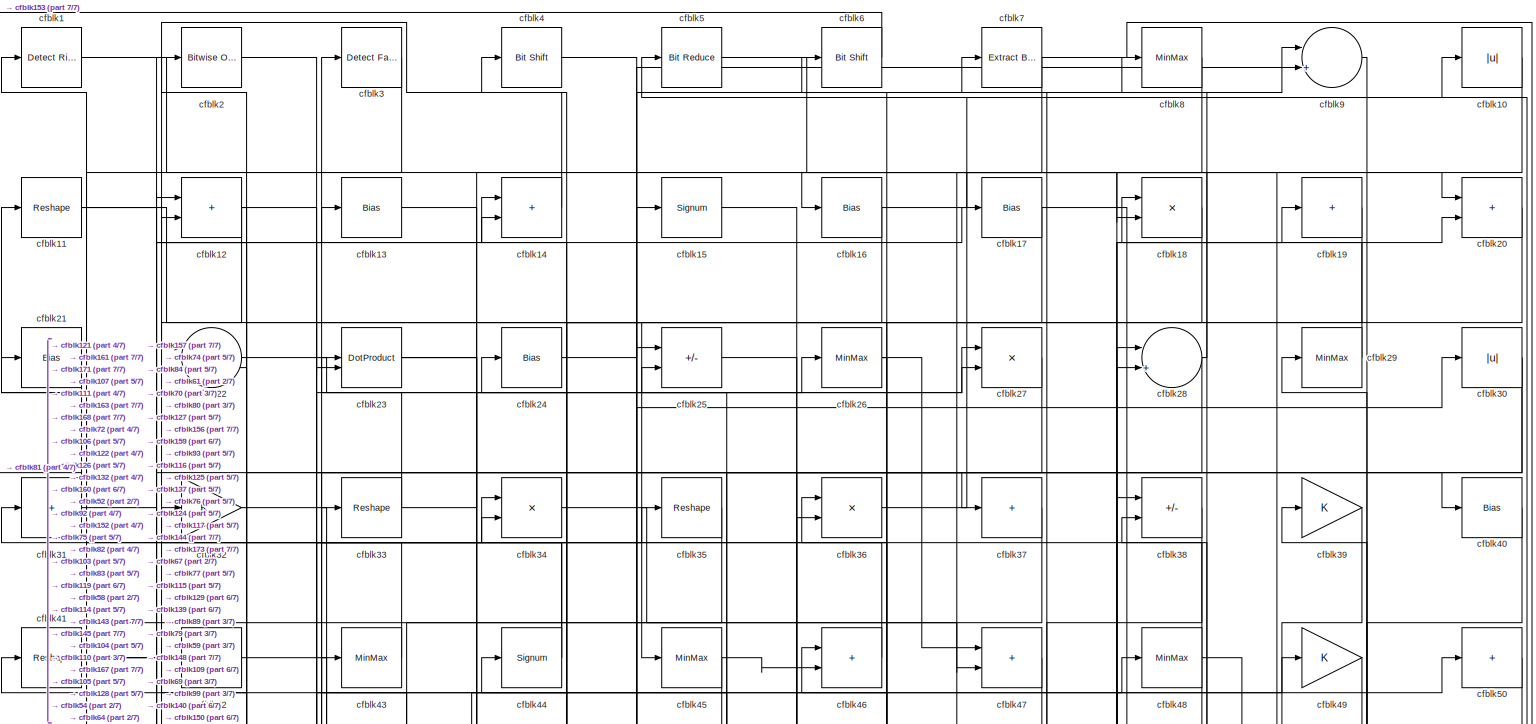
[diagram: root canvas - part 1/7, full width, top band]
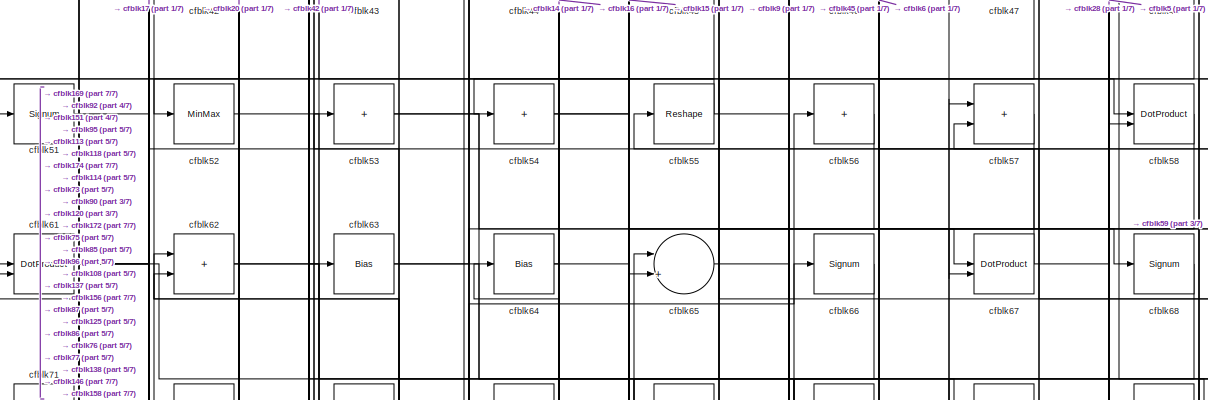
[diagram: root canvas - part 2/7, full width, middle band]
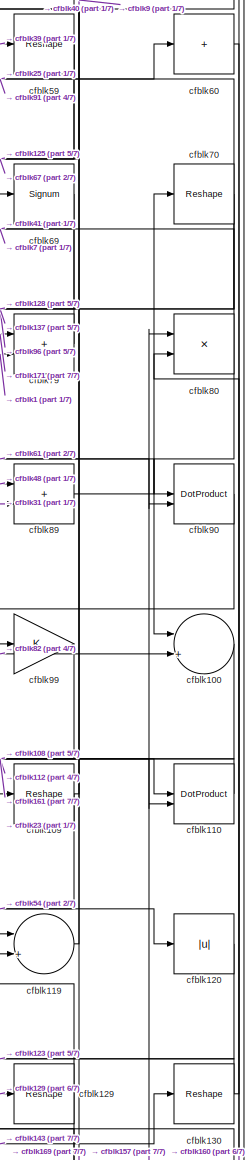
[diagram: root canvas - part 3/7, middle right region]
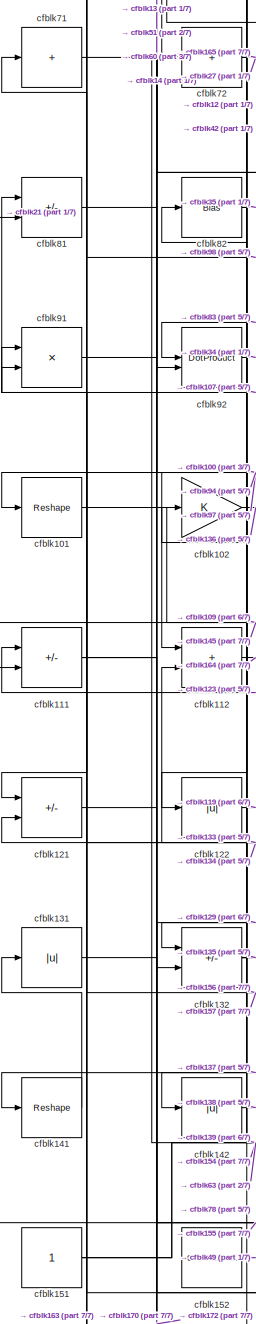
[diagram: root canvas - part 4/7, middle left region]
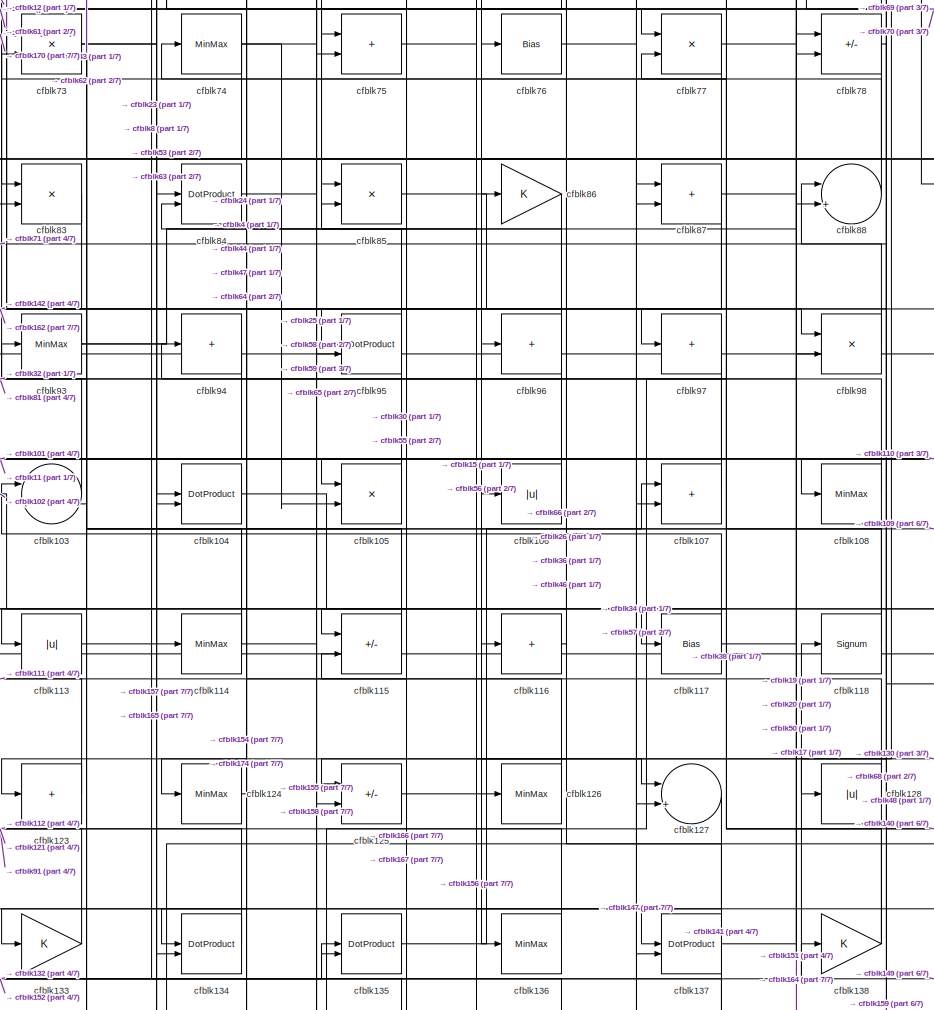
[diagram: root canvas - part 5/7, central region]
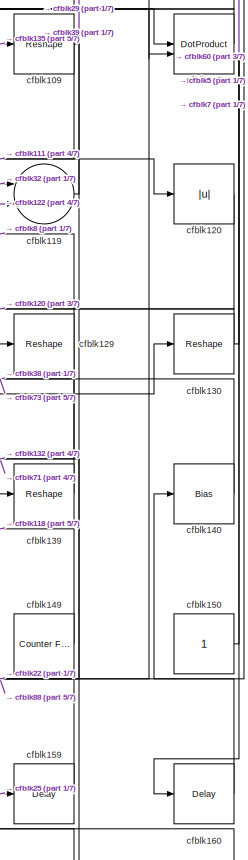
[diagram: root canvas - part 6/7, bottom right region]
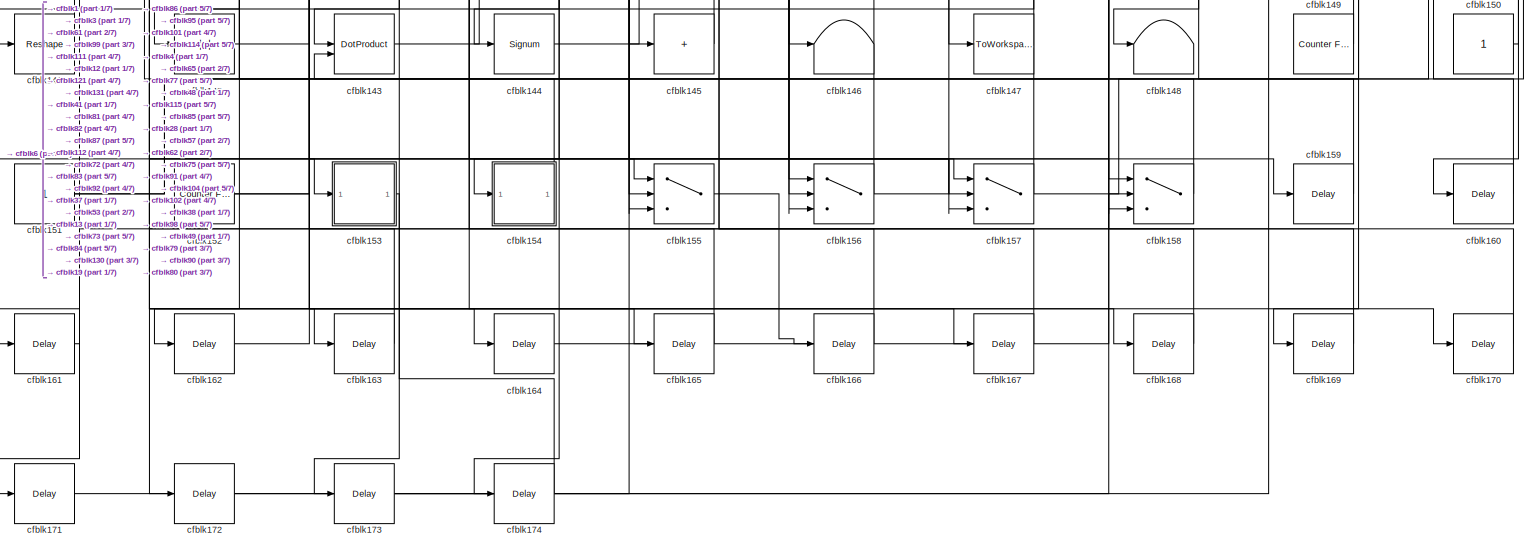
[diagram: root canvas - part 7/7, full width, bottom band]
MODEL slx_5e91fe5d6eaa
KIND model
CONFIG AbsTol = auto
CONFIG EnableMultiTasking = off
CONFIG FixedStep = auto
CONFIG MaxStep = auto
CONFIG MinStep = auto
CONFIG RelTol = 1e-3
CONFIG SampleTimeConstraint = Unconstrained
CONFIG SolverName = VariableStepAuto
CONFIG StartTime = 0.0
CONFIG StopTime = 10.0
BLOCK [Reference] cfblk1  REF=hdlsllib/Logic and Bit
Operations/Detect Rise
Nonnegative
  SourceBlock = hdlsllib/Logic and Bit\nOperations/Detect Rise\nNonnegative
  SourceType = Detect Rise Nonnegative
BLOCK [Abs] cfblk10
  SaturateOnIntegerOverflow = off
BLOCK [Sum] cfblk100
  Inputs = |++
BLOCK [Reshape] cfblk101
BLOCK [Gain] cfblk102
BLOCK [Sum] cfblk103
  Inputs = |++
BLOCK [DotProduct] cfblk104
  OutDataTypeStr = Inherit: Inherit via internal rule
BLOCK [Product] cfblk105
  Inputs = */
  RndMeth = Zero
  SaturateOnIntegerOverflow = on
BLOCK [Abs] cfblk106
  SaturateOnIntegerOverflow = off
BLOCK [Sum] cfblk107
  IconShape = rectangular
BLOCK [MinMax] cfblk108
BLOCK [Reshape] cfblk109
BLOCK [Reshape] cfblk11
BLOCK [DotProduct] cfblk110
  OutDataTypeStr = Inherit: Inherit via internal rule
BLOCK [Sum] cfblk111
  IconShape = rectangular
  Inputs = +-
BLOCK [Sum] cfblk112
  IconShape = rectangular
BLOCK [Abs] cfblk113
  SaturateOnIntegerOverflow = off
BLOCK [MinMax] cfblk114
BLOCK [Sum] cfblk115
  IconShape = rectangular
  Inputs = +-
BLOCK [Sum] cfblk116
  IconShape = rectangular
  Inputs = +
BLOCK [Bias] cfblk117
  Bias = 0.0
  SaturateOnIntegerOverflow = off
BLOCK [Signum] cfblk118
BLOCK [Sum] cfblk119
  Inputs = |++
BLOCK [Sum] cfblk12
  IconShape = rectangular
BLOCK [Abs] cfblk120
  SaturateOnIntegerOverflow = off
BLOCK [Sum] cfblk121
  IconShape = rectangular
  Inputs = +-
BLOCK [Abs] cfblk122
  SaturateOnIntegerOverflow = off
BLOCK [Sum] cfblk123
  IconShape = rectangular
  Inputs = +
BLOCK [MinMax] cfblk124
BLOCK [Sum] cfblk125
  IconShape = rectangular
  Inputs = +-
BLOCK [MinMax] cfblk126
BLOCK [Sum] cfblk127
  Inputs = |++
BLOCK [Abs] cfblk128
  SaturateOnIntegerOverflow = off
BLOCK [Reshape] cfblk129
BLOCK [Bias] cfblk13
  Bias = 0.0
  SaturateOnIntegerOverflow = off
BLOCK [Reshape] cfblk130
BLOCK [Abs] cfblk131
  SaturateOnIntegerOverflow = off
BLOCK [Sum] cfblk132
  IconShape = rectangular
  Inputs = +-
BLOCK [Gain] cfblk133
BLOCK [DotProduct] cfblk134
  OutDataTypeStr = Inherit: Inherit via internal rule
BLOCK [DotProduct] cfblk135
  OutDataTypeStr = Inherit: Inherit via internal rule
BLOCK [MinMax] cfblk136
BLOCK [DotProduct] cfblk137
  OutDataTypeStr = Inherit: Inherit via internal rule
BLOCK [Gain] cfblk138
BLOCK [Reshape] cfblk139
BLOCK [Sum] cfblk14
  IconShape = rectangular
BLOCK [Bias] cfblk140
  Bias = 0.0
  SaturateOnIntegerOverflow = off
BLOCK [Reshape] cfblk141
BLOCK [Abs] cfblk142
  SaturateOnIntegerOverflow = off
BLOCK [DotProduct] cfblk143
  OutDataTypeStr = Inherit: Inherit via internal rule
BLOCK [Signum] cfblk144
BLOCK [Sum] cfblk145
  IconShape = rectangular
  Inputs = +
BLOCK [Terminator] cfblk146
BLOCK [ToWorkspace] cfblk147
  MaxDataPoints = inf
  SampleTime = -1
  SaveFormat = Timeseries
  VariableName = simout
BLOCK [Terminator] cfblk148
BLOCK [Reference] cfblk149  REF=hdlsllib/Sources/Counter
Free-Running
  SourceBlock = hdlsllib/Sources/Counter\nFree-Running
  SourceType = Counter Free-Running
BLOCK [Signum] cfblk15
BLOCK [Constant] cfblk150
  SampleTime = -1
BLOCK [Constant] cfblk151
  SampleTime = -1
BLOCK [Reference] cfblk152  REF=hdlsllib/Sources/Counter
Free-Running
  SourceBlock = hdlsllib/Sources/Counter\nFree-Running
  SourceType = Counter Free-Running
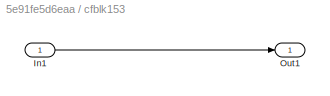
BLOCK [SubSystem] cfblk153
  LibrarySourceBlock = hdlsllib/Ports &\nSubsystems/Subsystem
BLOCK [Inport] cfblk153/In1
BLOCK [Outport] cfblk153/Out1
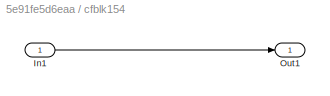
BLOCK [SubSystem] cfblk154
  LibrarySourceBlock = hdlsllib/Ports &\nSubsystems/Subsystem
BLOCK [Inport] cfblk154/In1
BLOCK [Outport] cfblk154/Out1
BLOCK [Switch] cfblk155
  InputSameDT = off
  SaturateOnIntegerOverflow = off
BLOCK [Switch] cfblk156
  InputSameDT = off
  SaturateOnIntegerOverflow = off
BLOCK [Switch] cfblk157
  InputSameDT = off
  SaturateOnIntegerOverflow = off
BLOCK [Switch] cfblk158
  InputSameDT = off
  SaturateOnIntegerOverflow = off
BLOCK [Delay] cfblk159
  InputPortMap = u0
  SampleTime = 1
BLOCK [Bias] cfblk16
  Bias = 0.0
  SaturateOnIntegerOverflow = off
BLOCK [Delay] cfblk160
  InputPortMap = u0
  SampleTime = 1
BLOCK [Delay] cfblk161
  InputPortMap = u0
  SampleTime = 1
BLOCK [Delay] cfblk162
  InputPortMap = u0
  SampleTime = 1
BLOCK [Delay] cfblk163
  InputPortMap = u0
  SampleTime = 1
BLOCK [Delay] cfblk164
  InputPortMap = u0
  SampleTime = 1
BLOCK [Delay] cfblk165
  InputPortMap = u0
  SampleTime = 1
BLOCK [Delay] cfblk166
  InputPortMap = u0
  SampleTime = 1
BLOCK [Delay] cfblk167
  InputPortMap = u0
  SampleTime = 1
BLOCK [Delay] cfblk168
  InputPortMap = u0
  SampleTime = 1
BLOCK [Delay] cfblk169
  InputPortMap = u0
  SampleTime = 1
BLOCK [Bias] cfblk17
  Bias = 0.0
  SaturateOnIntegerOverflow = off
BLOCK [Delay] cfblk170
  InputPortMap = u0
  SampleTime = 1
BLOCK [Delay] cfblk171
  InputPortMap = u0
  SampleTime = 1
BLOCK [Delay] cfblk172
  InputPortMap = u0
  SampleTime = 1
BLOCK [Delay] cfblk173
  InputPortMap = u0
  SampleTime = 1
BLOCK [Delay] cfblk174
  InputPortMap = u0
  SampleTime = 1
BLOCK [Product] cfblk18
  Inputs = */
  RndMeth = Zero
  SaturateOnIntegerOverflow = on
BLOCK [Sum] cfblk19
  IconShape = rectangular
  Inputs = +
BLOCK [Reference] cfblk2  REF=simulink/Logic and Bit
Operations/Bitwise
Operator
  LibrarySourceBlock = hdlsllib/Logic and Bit\nOperations/Bitwise\nOperator
  SourceBlock = simulink/Logic and Bit\nOperations/Bitwise\nOperator
  SourceType = Bitwise Operator
BLOCK [Sum] cfblk20
  IconShape = rectangular
BLOCK [Bias] cfblk21
  Bias = 0.0
  SaturateOnIntegerOverflow = off
BLOCK [Sum] cfblk22
  Inputs = |++
BLOCK [DotProduct] cfblk23
  OutDataTypeStr = Inherit: Inherit via internal rule
BLOCK [Bias] cfblk24
  Bias = 0.0
  SaturateOnIntegerOverflow = off
BLOCK [Sum] cfblk25
  IconShape = rectangular
  Inputs = +-
BLOCK [MinMax] cfblk26
BLOCK [Product] cfblk27
  Inputs = */
  RndMeth = Zero
  SaturateOnIntegerOverflow = on
BLOCK [Sum] cfblk28
  Inputs = |++
BLOCK [MinMax] cfblk29
BLOCK [Reference] cfblk3  REF=hdlsllib/Logic and Bit
Operations/Detect Fall
Negative
  SourceBlock = hdlsllib/Logic and Bit\nOperations/Detect Fall\nNegative
  SourceType = Detect Fall Negative
BLOCK [Abs] cfblk30
  SaturateOnIntegerOverflow = off
BLOCK [Sum] cfblk31
  IconShape = rectangular
  Inputs = +
BLOCK [Gain] cfblk32
BLOCK [Reshape] cfblk33
BLOCK [Product] cfblk34
  Inputs = */
  RndMeth = Zero
  SaturateOnIntegerOverflow = on
BLOCK [Reshape] cfblk35
BLOCK [Product] cfblk36
  Inputs = */
  RndMeth = Zero
  SaturateOnIntegerOverflow = on
BLOCK [Sum] cfblk37
  IconShape = rectangular
  Inputs = +
BLOCK [Sum] cfblk38
  IconShape = rectangular
  Inputs = +-
BLOCK [Gain] cfblk39
BLOCK [Reference] cfblk4  REF=hdlsllib/Logic and Bit
Operations/Bit Shift
  SourceBlock = hdlsllib/Logic and Bit\nOperations/Bit Shift
  SourceType = Bit Shift
BLOCK [Bias] cfblk40
  Bias = 0.0
  SaturateOnIntegerOverflow = off
BLOCK [Reshape] cfblk41
BLOCK [Sum] cfblk42
  IconShape = rectangular
  Inputs = +
BLOCK [MinMax] cfblk43
BLOCK [Signum] cfblk44
BLOCK [MinMax] cfblk45
BLOCK [Sum] cfblk46
  IconShape = rectangular
BLOCK [Sum] cfblk47
  IconShape = rectangular
BLOCK [MinMax] cfblk48
BLOCK [Gain] cfblk49
BLOCK [Reference] cfblk5  REF=hdlsllib/Logic and Bit
Operations/Bit Reduce
  SourceBlock = hdlsllib/Logic and Bit\nOperations/Bit Reduce
  SourceType = Bit Reduce
BLOCK [Sum] cfblk50
  IconShape = rectangular
  Inputs = +
BLOCK [Signum] cfblk51
BLOCK [MinMax] cfblk52
BLOCK [Sum] cfblk53
  IconShape = rectangular
  Inputs = +
BLOCK [Sum] cfblk54
  IconShape = rectangular
  Inputs = +
BLOCK [Reshape] cfblk55
BLOCK [Sum] cfblk56
  IconShape = rectangular
  Inputs = +
BLOCK [Sum] cfblk57
  IconShape = rectangular
BLOCK [DotProduct] cfblk58
  OutDataTypeStr = Inherit: Inherit via internal rule
BLOCK [Reshape] cfblk59
BLOCK [Reference] cfblk6  REF=hdlsllib/Logic and Bit
Operations/Bit Shift
  SourceBlock = hdlsllib/Logic and Bit\nOperations/Bit Shift
  SourceType = Bit Shift
BLOCK [Sum] cfblk60
  IconShape = rectangular
  Inputs = +
BLOCK [DotProduct] cfblk61
  OutDataTypeStr = Inherit: Inherit via internal rule
BLOCK [Sum] cfblk62
  IconShape = rectangular
BLOCK [Bias] cfblk63
  Bias = 0.0
  SaturateOnIntegerOverflow = off
BLOCK [Bias] cfblk64
  Bias = 0.0
  SaturateOnIntegerOverflow = off
BLOCK [Sum] cfblk65
  Inputs = |++
BLOCK [Signum] cfblk66
BLOCK [DotProduct] cfblk67
  OutDataTypeStr = Inherit: Inherit via internal rule
BLOCK [Signum] cfblk68
BLOCK [Signum] cfblk69
BLOCK [Reference] cfblk7  REF=simulink/Logic and Bit
Operations/Extract Bits
  LibrarySourceBlock = hdlsllib/Logic and Bit\nOperations/Extract Bits
  SourceBlock = simulink/Logic and Bit\nOperations/Extract Bits
  SourceType = Extract Bits
BLOCK [Reshape] cfblk70
BLOCK [Sum] cfblk71
  IconShape = rectangular
  Inputs = +
BLOCK [Sum] cfblk72
  IconShape = rectangular
  Inputs = +
BLOCK [Product] cfblk73
  Inputs = */
  RndMeth = Zero
  SaturateOnIntegerOverflow = on
BLOCK [MinMax] cfblk74
BLOCK [Sum] cfblk75
  IconShape = rectangular
BLOCK [Bias] cfblk76
  Bias = 0.0
  SaturateOnIntegerOverflow = off
BLOCK [Product] cfblk77
  Inputs = */
  RndMeth = Zero
  SaturateOnIntegerOverflow = on
BLOCK [Sum] cfblk78
  IconShape = rectangular
  Inputs = +-
BLOCK [Sum] cfblk79
  IconShape = rectangular
BLOCK [MinMax] cfblk8
BLOCK [Product] cfblk80
  Inputs = */
  RndMeth = Zero
  SaturateOnIntegerOverflow = on
BLOCK [Sum] cfblk81
  IconShape = rectangular
  Inputs = +-
BLOCK [Bias] cfblk82
  Bias = 0.0
  SaturateOnIntegerOverflow = off
BLOCK [Product] cfblk83
  Inputs = */
  RndMeth = Zero
  SaturateOnIntegerOverflow = on
BLOCK [DotProduct] cfblk84
  OutDataTypeStr = Inherit: Inherit via internal rule
BLOCK [Product] cfblk85
  Inputs = */
  RndMeth = Zero
  SaturateOnIntegerOverflow = on
BLOCK [Gain] cfblk86
BLOCK [Sum] cfblk87
  IconShape = rectangular
BLOCK [Sum] cfblk88
  Inputs = |++
BLOCK [Sum] cfblk89
  IconShape = rectangular
BLOCK [Sum] cfblk9
  Inputs = |++
BLOCK [DotProduct] cfblk90
  OutDataTypeStr = Inherit: Inherit via internal rule
BLOCK [Product] cfblk91
  Inputs = */
  RndMeth = Zero
  SaturateOnIntegerOverflow = on
BLOCK [DotProduct] cfblk92
  OutDataTypeStr = Inherit: Inherit via internal rule
BLOCK [MinMax] cfblk93
BLOCK [Sum] cfblk94
  IconShape = rectangular
  Inputs = +
BLOCK [DotProduct] cfblk95
  OutDataTypeStr = Inherit: Inherit via internal rule
BLOCK [Sum] cfblk96
  IconShape = rectangular
  Inputs = +
BLOCK [Sum] cfblk97
  IconShape = rectangular
  Inputs = +
BLOCK [Product] cfblk98
  Inputs = */
  RndMeth = Zero
  SaturateOnIntegerOverflow = on
BLOCK [Gain] cfblk99
LINE cfblk100:1 -> cfblk112:1
LINE cfblk101:1 -> cfblk145:1
LINE cfblk102:1 -> cfblk136:1
LINE cfblk103:1 -> cfblk3:1
LINE cfblk104:1 -> cfblk147:1
LINE cfblk105:1 -> cfblk24:1
LINE cfblk106:1 -> cfblk32:1
LINE cfblk107:1 -> cfblk81:1
LINE cfblk108:1 -> cfblk55:1
NET cfblk109:1 -> cfblk111:2, cfblk29:1
LINE cfblk10:1 -> cfblk18:2
LINE cfblk110:1 -> cfblk108:1
NET cfblk111:1 -> cfblk13:1, cfblk155:1, cfblk157:3
LINE cfblk112:1 -> cfblk164:1
LINE cfblk113:1 -> cfblk107:1
NET cfblk114:1 -> cfblk158:3, cfblk43:1, cfblk62:2
NET cfblk115:1 -> cfblk44:1, cfblk93:1
LINE cfblk116:1 -> cfblk36:1
NET cfblk117:1 -> cfblk103:1, cfblk50:1
NET cfblk118:1 -> cfblk62:1, cfblk77:2
LINE cfblk119:1 -> cfblk39:1
NET cfblk11:1 -> cfblk107:2, cfblk45:1
LINE cfblk120:1 -> cfblk129:1
LINE cfblk121:1 -> cfblk163:1
LINE cfblk122:1 -> cfblk119:2
LINE cfblk123:1 -> cfblk111:1
LINE cfblk124:1 -> cfblk84:2
LINE cfblk125:1 -> cfblk56:1
LINE cfblk126:1 -> cfblk12:2
LINE cfblk127:1 -> cfblk133:1
LINE cfblk128:1 -> cfblk4:1
NET cfblk129:1 -> cfblk132:2, cfblk8:1
NET cfblk12:1 -> cfblk122:1, cfblk22:1, cfblk75:2
NET cfblk130:1 -> cfblk123:1, cfblk80:2
LINE cfblk131:1 -> cfblk172:1
NET cfblk132:1 -> cfblk135:2, cfblk14:2, cfblk42:1
LINE cfblk133:1 -> cfblk121:2
LINE cfblk134:1 -> cfblk91:1
LINE cfblk135:1 -> cfblk109:1
LINE cfblk136:1 -> cfblk112:2
NET cfblk137:1 -> cfblk141:1, cfblk46:1, cfblk78:1
NET cfblk138:1 -> cfblk57:2, cfblk94:1
LINE cfblk139:1 -> cfblk38:2
LINE cfblk13:1 -> cfblk167:1
LINE cfblk140:1 -> cfblk73:2
LINE cfblk141:1 -> cfblk131:1
LINE cfblk142:1 -> cfblk138:1
LINE cfblk143:1 -> cfblk130:1
LINE cfblk144:1 -> cfblk28:1
LINE cfblk145:1 -> cfblk48:1
LINE cfblk149:1 -> cfblk118:1
LINE cfblk14:1 -> cfblk72:1
LINE cfblk150:1 -> cfblk5:1
NET cfblk151:1 -> cfblk63:1, cfblk78:2
NET cfblk152:1 -> cfblk135:1, cfblk49:1
LINE cfblk153/In1:1 -> cfblk153/Out1:1
LINE cfblk153:1 -> cfblk173:1
LINE cfblk154/In1:1 -> cfblk154/Out1:1
LINE cfblk154:1 -> cfblk82:1
LINE cfblk155:1 -> cfblk166:1
NET cfblk156:1 -> cfblk87:1, cfblk91:2
NET cfblk157:1 -> cfblk102:1, cfblk80:1
LINE cfblk158:1 -> cfblk143:2
LINE cfblk159:1 -> cfblk88:1
LINE cfblk15:1 -> cfblk127:1
LINE cfblk160:1 -> cfblk22:2
LINE cfblk161:1 -> cfblk1:1
LINE cfblk162:1 -> cfblk83:2
LINE cfblk163:1 -> cfblk12:1
LINE cfblk164:1 -> cfblk98:2
LINE cfblk165:1 -> cfblk84:1
LINE cfblk166:1 -> cfblk85:2
LINE cfblk167:1 -> cfblk115:2
LINE cfblk168:1 -> cfblk158:2
LINE cfblk169:1 -> cfblk61:2
NET cfblk16:1 -> cfblk20:1, cfblk54:1
LINE cfblk170:1 -> cfblk73:1
LINE cfblk171:1 -> cfblk79:1
LINE cfblk172:1 -> cfblk65:2
LINE cfblk173:1 -> cfblk38:1
LINE cfblk174:1 -> cfblk53:1
NET cfblk17:1 -> cfblk125:1, cfblk76:1
LINE cfblk18:1 -> cfblk23:2
LINE cfblk19:1 -> cfblk144:1
NET cfblk1:1 -> cfblk37:1, cfblk79:2
LINE cfblk20:1 -> cfblk52:1
LINE cfblk21:1 -> cfblk81:2
LINE cfblk22:1 -> cfblk26:1
NET cfblk23:1 -> cfblk104:1, cfblk110:2
LINE cfblk24:1 -> cfblk9:1
LINE cfblk25:1 -> cfblk159:1
NET cfblk26:1 -> cfblk116:1, cfblk47:1
LINE cfblk27:1 -> cfblk92:1
NET cfblk28:1 -> cfblk156:3, cfblk16:1
LINE cfblk29:1 -> cfblk18:1
LINE cfblk2:1 -> cfblk40:1
NET cfblk30:1 -> cfblk105:1, cfblk83:1
NET cfblk31:1 -> cfblk11:1, cfblk89:2
LINE cfblk32:1 -> cfblk119:1
NET cfblk33:1 -> cfblk23:1, cfblk27:1
LINE cfblk34:1 -> cfblk127:2
LINE cfblk35:1 -> cfblk121:1
LINE cfblk36:1 -> cfblk10:1
LINE cfblk37:1 -> cfblk143:1
LINE cfblk38:1 -> cfblk117:1
LINE cfblk39:1 -> cfblk59:1
LINE cfblk3:1 -> cfblk171:1
LINE cfblk40:1 -> cfblk69:1
NET cfblk41:1 -> cfblk110:1, cfblk168:1
LINE cfblk42:1 -> cfblk58:1
LINE cfblk43:1 -> cfblk33:1
NET cfblk44:1 -> cfblk31:1, cfblk34:1
NET cfblk45:1 -> cfblk46:2, cfblk61:1
LINE cfblk46:1 -> cfblk2:1
LINE cfblk47:1 -> cfblk124:1
NET cfblk48:1 -> cfblk115:1, cfblk21:1, cfblk89:1
LINE cfblk49:1 -> cfblk148:1
LINE cfblk4:1 -> cfblk157:1
LINE cfblk50:1 -> cfblk126:1
LINE cfblk51:1 -> cfblk92:2
LINE cfblk52:1 -> cfblk95:1
NET cfblk53:1 -> cfblk68:1, cfblk86:1
NET cfblk54:1 -> cfblk120:1, cfblk9:2
NET cfblk55:1 -> cfblk51:1, cfblk87:2
LINE cfblk56:1 -> cfblk75:1
LINE cfblk57:1 -> cfblk156:2
LINE cfblk58:1 -> cfblk95:2
NET cfblk59:1 -> cfblk125:2, cfblk67:2
LINE cfblk5:1 -> cfblk58:2
LINE cfblk60:1 -> cfblk160:1
NET cfblk61:1 -> cfblk114:1, cfblk17:1, cfblk90:1, cfblk90:2
NET cfblk62:1 -> cfblk146:1, cfblk158:1
NET cfblk63:1 -> cfblk67:1, cfblk77:1
NET cfblk64:1 -> cfblk14:1, cfblk15:1
LINE cfblk65:1 -> cfblk137:1
LINE cfblk66:1 -> cfblk85:1
NET cfblk67:1 -> cfblk28:2, cfblk6:1
LINE cfblk68:1 -> cfblk113:1
LINE cfblk69:1 -> cfblk128:1
LINE cfblk6:1 -> cfblk153:1
NET cfblk70:1 -> cfblk137:2, cfblk25:2, cfblk96:1
LINE cfblk71:1 -> cfblk139:1
NET cfblk72:1 -> cfblk165:1, cfblk27:2
NET cfblk73:1 -> cfblk157:2, cfblk66:1
NET cfblk74:1 -> cfblk105:2, cfblk134:2, cfblk25:1
LINE cfblk75:1 -> cfblk156:1
LINE cfblk76:1 -> cfblk57:1
NET cfblk77:1 -> cfblk155:3, cfblk19:1
NET cfblk78:1 -> cfblk103:2, cfblk97:1
LINE cfblk79:1 -> cfblk7:1
NET cfblk7:1 -> cfblk140:1, cfblk47:2
NET cfblk80:1 -> cfblk100:1, cfblk41:1
LINE cfblk81:1 -> cfblk170:1
NET cfblk82:1 -> cfblk100:2, cfblk35:1
LINE cfblk83:1 -> cfblk142:1
LINE cfblk84:1 -> cfblk30:1
LINE cfblk85:1 -> cfblk98:1
LINE cfblk86:1 -> cfblk174:1
NET cfblk87:1 -> cfblk134:1, cfblk162:1, cfblk88:2
LINE cfblk88:1 -> cfblk74:1
LINE cfblk89:1 -> cfblk70:1
LINE cfblk8:1 -> cfblk104:2
LINE cfblk90:1 -> cfblk169:1
LINE cfblk91:1 -> cfblk60:1
NET cfblk92:1 -> cfblk155:2, cfblk34:2
NET cfblk93:1 -> cfblk20:2, cfblk36:2
LINE cfblk94:1 -> cfblk101:1
NET cfblk95:1 -> cfblk154:1, cfblk64:1
NET cfblk96:1 -> cfblk106:1, cfblk65:1
LINE cfblk97:1 -> cfblk132:1
LINE cfblk98:1 -> cfblk71:1
LINE cfblk99:1 -> cfblk161:1
LINE cfblk9:1 -> cfblk99:1
note: NET lines group one-source signal fan-out (src -> all destinations, sorted); 1:1 wires keep LINE
